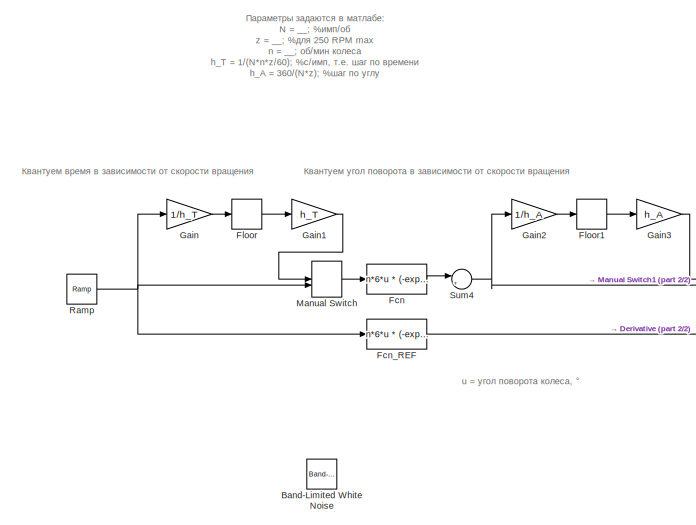
[diagram: root canvas - part 1/2, left side, full height]
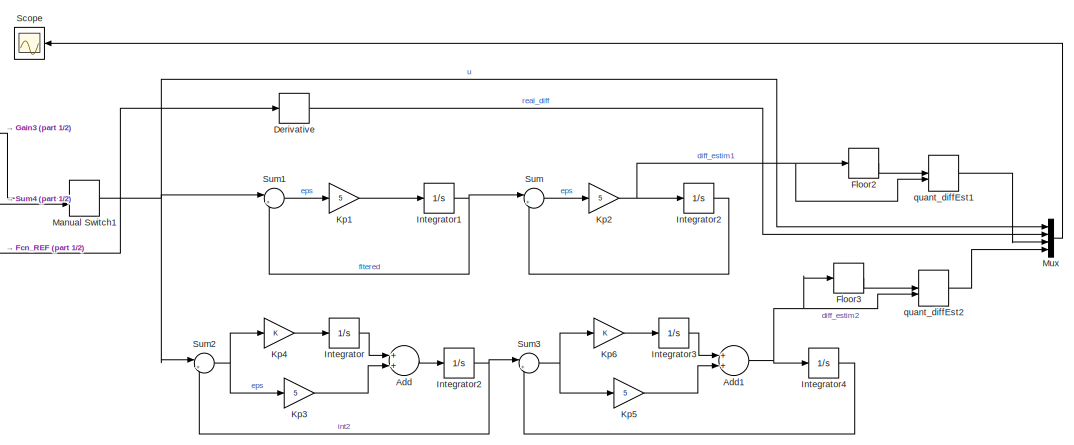
[diagram: root canvas - part 2/2, right side, full height]
MODEL slx_d1bf65377d16
KIND model
CONFIG AbsTol = auto
CONFIG EnableMultiTasking = off
CONFIG FixedStep = auto
CONFIG MaxStep = auto
CONFIG MinStep = auto
CONFIG RelTol = 1e-3
CONFIG SampleTimeConstraint = Unconstrained
CONFIG Solver = VariableStepAuto
CONFIG SolverName = VariableStepAuto
CONFIG StartTime = 0.0
CONFIG StopTime = 3
BLOCK [Sum] Add
  InputSameDT = off
  OutDataTypeStr = Inherit: Inherit via internal rule
  Ports = [2, 1]
  SaturateOnIntegerOverflow = off
BLOCK [Sum] Add1
  InputSameDT = off
  OutDataTypeStr = Inherit: Inherit via internal rule
  Ports = [2, 1]
  SaturateOnIntegerOverflow = off
BLOCK [Reference] Band-Limited White Noise  REF=simulink/Sources/Band-Limited
White Noise
  Ports = [0, 1]
  SourceBlock = simulink/Sources/Band-Limited\nWhite Noise
  SourceProductBaseCode = SL
  SourceProductName = Simulink
  SourceType = Band-Limited White Noise.
BLOCK [Derivative] Derivative
BLOCK [Fcn] Fcn
  Expr = n*6*u * (-exp(-0.1*u)+1)
BLOCK [Fcn] Fcn_REF
  Expr = n*6*u * (-exp(-0.1*u)+1)
BLOCK [Rounding] Floor
BLOCK [Rounding] Floor1
BLOCK [Rounding] Floor2
BLOCK [Rounding] Floor3
BLOCK [Gain] Gain
  Gain = 1/h_T
  OutDataTypeStr = Inherit: Inherit via internal rule
  ParamDataTypeStr = Inherit: Inherit via internal rule
  SaturateOnIntegerOverflow = off
BLOCK [Gain] Gain1
  Gain = h_T
  OutDataTypeStr = Inherit: Inherit via internal rule
  ParamDataTypeStr = Inherit: Inherit via internal rule
  SaturateOnIntegerOverflow = off
BLOCK [Gain] Gain2
  Gain = 1/h_A
  OutDataTypeStr = Inherit: Inherit via internal rule
  ParamDataTypeStr = Inherit: Inherit via internal rule
  SaturateOnIntegerOverflow = off
BLOCK [Gain] Gain3
  Gain = h_A
  OutDataTypeStr = Inherit: Inherit via internal rule
  ParamDataTypeStr = Inherit: Inherit via internal rule
  SaturateOnIntegerOverflow = off
BLOCK [Integrator] Integrator
  Ports = [1, 1]
BLOCK [Integrator] Integrator1
  Ports = [1, 1]
BLOCK [Integrator] Integrator2
  Ports = [1, 1]
BLOCK [Integrator] Integrator2 
  Ports = [1, 1]
BLOCK [Integrator] Integrator3
  Ports = [1, 1]
BLOCK [Integrator] Integrator4
  Ports = [1, 1]
BLOCK [Gain] Kp1
  Gain = 5
  OutDataTypeStr = Inherit: Inherit via internal rule
  ParamDataTypeStr = Inherit: Inherit via internal rule
  SaturateOnIntegerOverflow = off
BLOCK [Gain] Kp2
  Gain = 5
  OutDataTypeStr = Inherit: Inherit via internal rule
  ParamDataTypeStr = Inherit: Inherit via internal rule
  SaturateOnIntegerOverflow = off
BLOCK [Gain] Kp3
  Gain = 5
  OutDataTypeStr = Inherit: Inherit via internal rule
  ParamDataTypeStr = Inherit: Inherit via internal rule
  SaturateOnIntegerOverflow = off
BLOCK [Gain] Kp4
  OutDataTypeStr = Inherit: Inherit via internal rule
  ParamDataTypeStr = Inherit: Inherit via internal rule
  SaturateOnIntegerOverflow = off
BLOCK [Gain] Kp5
  Gain = 5
  OutDataTypeStr = Inherit: Inherit via internal rule
  ParamDataTypeStr = Inherit: Inherit via internal rule
  SaturateOnIntegerOverflow = off
BLOCK [Gain] Kp6
  OutDataTypeStr = Inherit: Inherit via internal rule
  ParamDataTypeStr = Inherit: Inherit via internal rule
  SaturateOnIntegerOverflow = off
BLOCK [ManualSwitch] Manual Switch
  CurrentSetting = 0
BLOCK [ManualSwitch] Manual Switch1
BLOCK [Mux] Mux
  DisplayOption = bar
  Ports = [4, 1]
BLOCK [Reference] Ramp  REF=simulink/Sources/Ramp
  Ports = [0, 1]
  SourceBlock = simulink/Sources/Ramp
  SourceProductBaseCode = SL
  SourceProductName = Simulink
  SourceType = Ramp
BLOCK [Scope] Scope
  NumInputPorts = 1
  Ports = [1]
  ScopeSpecificationString = Simulink.scopes.TimeScopeBlockCfg('CurrentConfiguration', extmgr.ConfigurationSet(extmgr.Configuration('Core','General UI',true),extmgr.Configuration('Core','Source UI',true),extmgr.Configuration('Sources','WiredSimulink',true),extmgr.Configuration('Visuals','Time Domain',true,'SerializedDisplays',{struct('MinYLimReal','-34.95519','MaxYLimReal','314.59667','YLabelReal','','MinYLimMag','0.00000','M...<+1446ch>
BLOCK [Sum] Sum
  IconShape = round
  InputSameDT = off
  Inputs = |+-
  OutDataTypeStr = Inherit: Inherit via internal rule
  Ports = [2, 1]
  SaturateOnIntegerOverflow = off
BLOCK [Sum] Sum1
  IconShape = round
  InputSameDT = off
  Inputs = |+-
  OutDataTypeStr = Inherit: Inherit via internal rule
  Ports = [2, 1]
  SaturateOnIntegerOverflow = off
BLOCK [Sum] Sum2
  IconShape = round
  InputSameDT = off
  Inputs = |+-
  OutDataTypeStr = Inherit: Inherit via internal rule
  Ports = [2, 1]
  SaturateOnIntegerOverflow = off
BLOCK [Sum] Sum3
  IconShape = round
  InputSameDT = off
  Inputs = |+-
  OutDataTypeStr = Inherit: Inherit via internal rule
  Ports = [2, 1]
  SaturateOnIntegerOverflow = off
BLOCK [Sum] Sum4
  IconShape = round
  InputSameDT = off
  Inputs = |++
  OutDataTypeStr = Inherit: Inherit via internal rule
  Ports = [2, 1]
  SaturateOnIntegerOverflow = off
BLOCK [ManualSwitch] quant_diffEst1
BLOCK [ManualSwitch] quant_diffEst2
ANNOTATION (root): Параметры задаются в матлабе: N = __; %имп/об z = __; %для 250 RPM max n = __; об/мин колеса h_T = 1/(N*n*z/60); %с/имп, т.е. шаг по времени h_A = 360/(N*z); %шаг по углу
ANNOTATION (root): u = угол поворота колеса, °
ANNOTATION (root): Квантуем время в зависимости от скорости вращения
ANNOTATION (root): Квантуем угол поворота в зависимости от скорости вращения
NET Add1:1 -> Floor3:1, Integrator4:1, quant_diffEst2:2
LINE Add:1 -> Integrator2:1
LINE Derivative:1 -> Mux:2
LINE Fcn:1 -> Sum4:1
LINE Fcn_REF:1 -> Derivative:1
LINE Floor1:1 -> Gain3:1
LINE Floor2:1 -> quant_diffEst1:1
LINE Floor3:1 -> quant_diffEst2:1
LINE Floor:1 -> Gain1:1
LINE Gain1:1 -> Manual Switch:1
LINE Gain2:1 -> Floor1:1
LINE Gain3:1 -> Manual Switch1:1
LINE Gain:1 -> Floor:1
NET Integrator1:1 -> Sum1:2, Sum:1
LINE Integrator2 :1 -> Sum:2
NET Integrator2:1 -> Sum2:2, Sum3:1
LINE Integrator3:1 -> Add1:1
LINE Integrator4:1 -> Sum3:2
LINE Integrator:1 -> Add:1
LINE Kp1:1 -> Integrator1:1
NET Kp2:1 -> Floor2:1, Integrator2 :1, quant_diffEst1:2
LINE Kp3:1 -> Add:2
LINE Kp4:1 -> Integrator:1
LINE Kp5:1 -> Add1:2
LINE Kp6:1 -> Integrator3:1
NET Manual Switch1:1 -> Mux:1, Sum1:1, Sum2:1
LINE Manual Switch:1 -> Fcn:1
LINE Mux:1 -> Scope:1
NET Ramp:1 -> Fcn_REF:1, Gain:1, Manual Switch:2
LINE Sum1:1 -> Kp1:1
NET Sum2:1 -> Kp3:1, Kp4:1
NET Sum3:1 -> Kp5:1, Kp6:1
NET Sum4:1 -> Gain2:1, Manual Switch1:2
LINE Sum:1 -> Kp2:1
LINE quant_diffEst1:1 -> Mux:3
LINE quant_diffEst2:1 -> Mux:4
note: NET lines group one-source signal fan-out (src -> all destinations, sorted); 1:1 wires keep LINE
